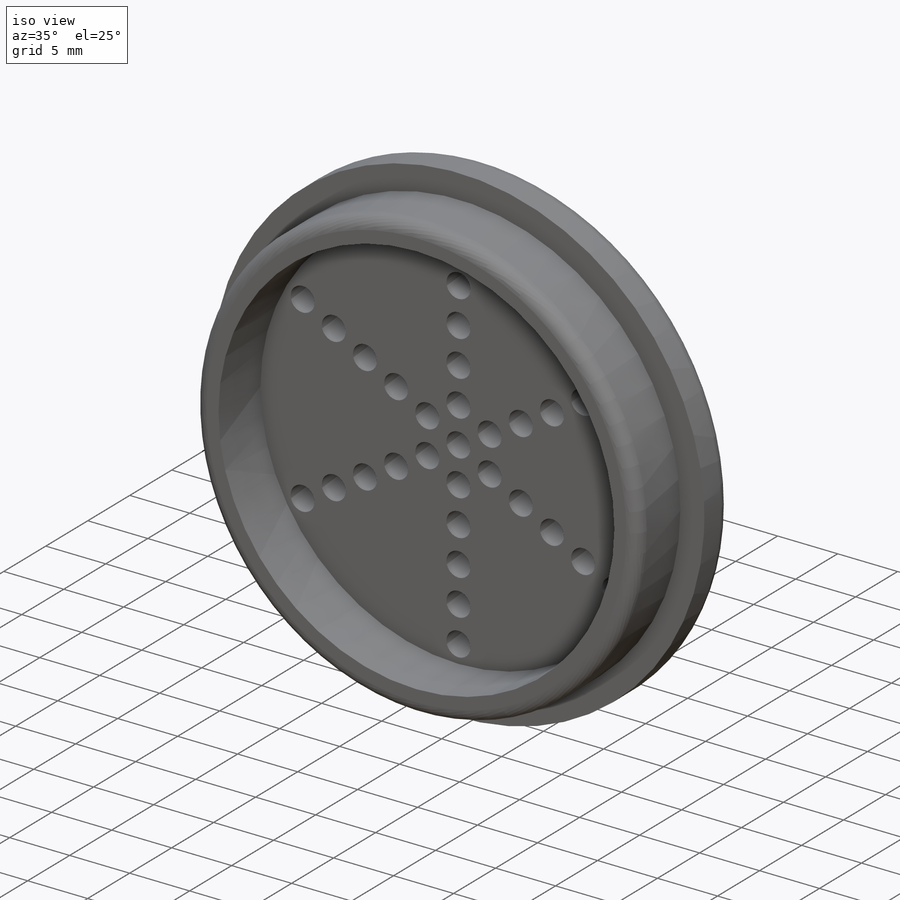
[diagram: iso view]
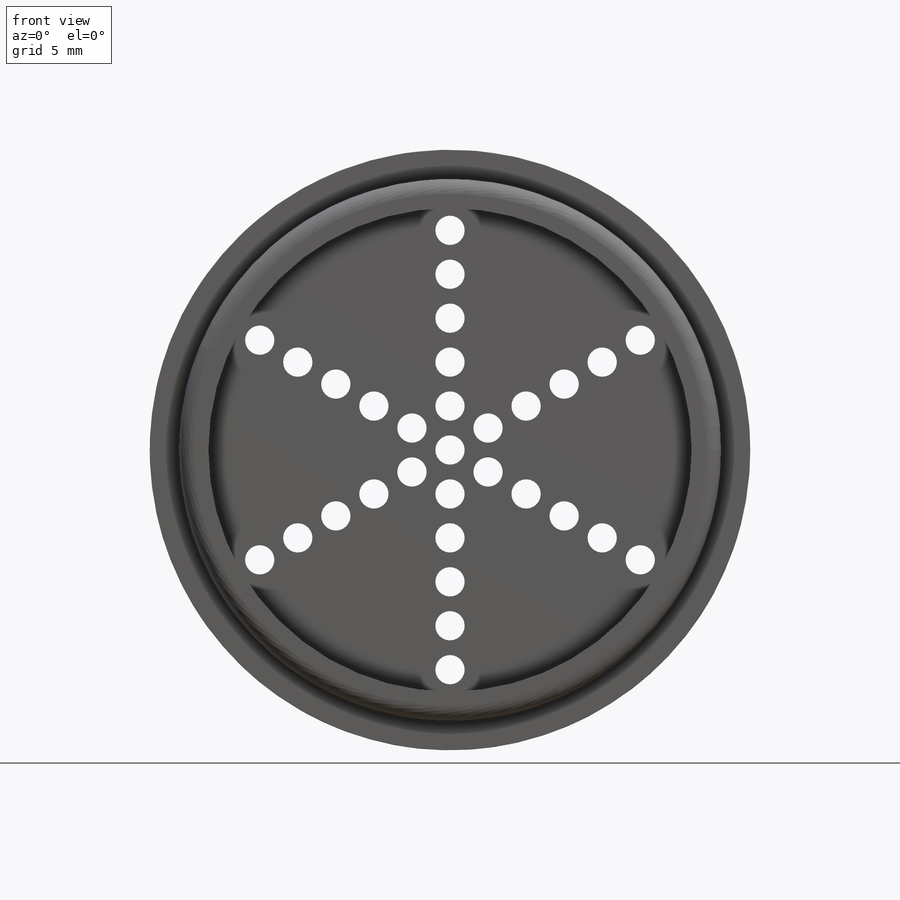
[diagram: front view]
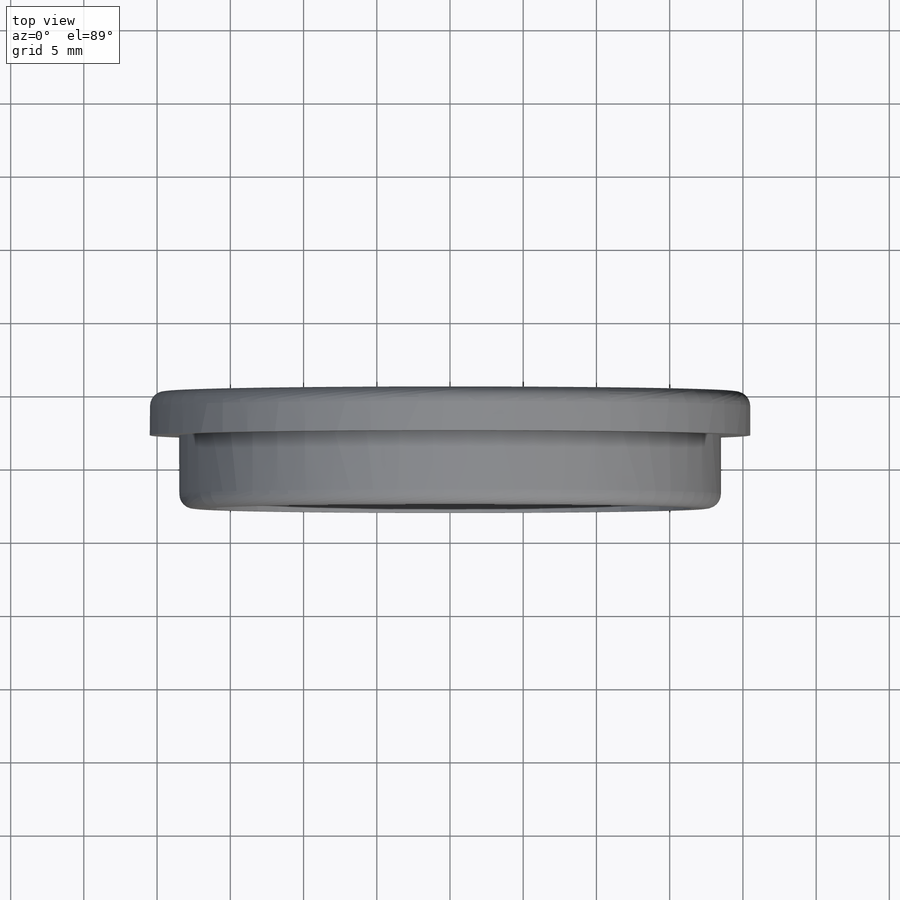
[diagram: top view]
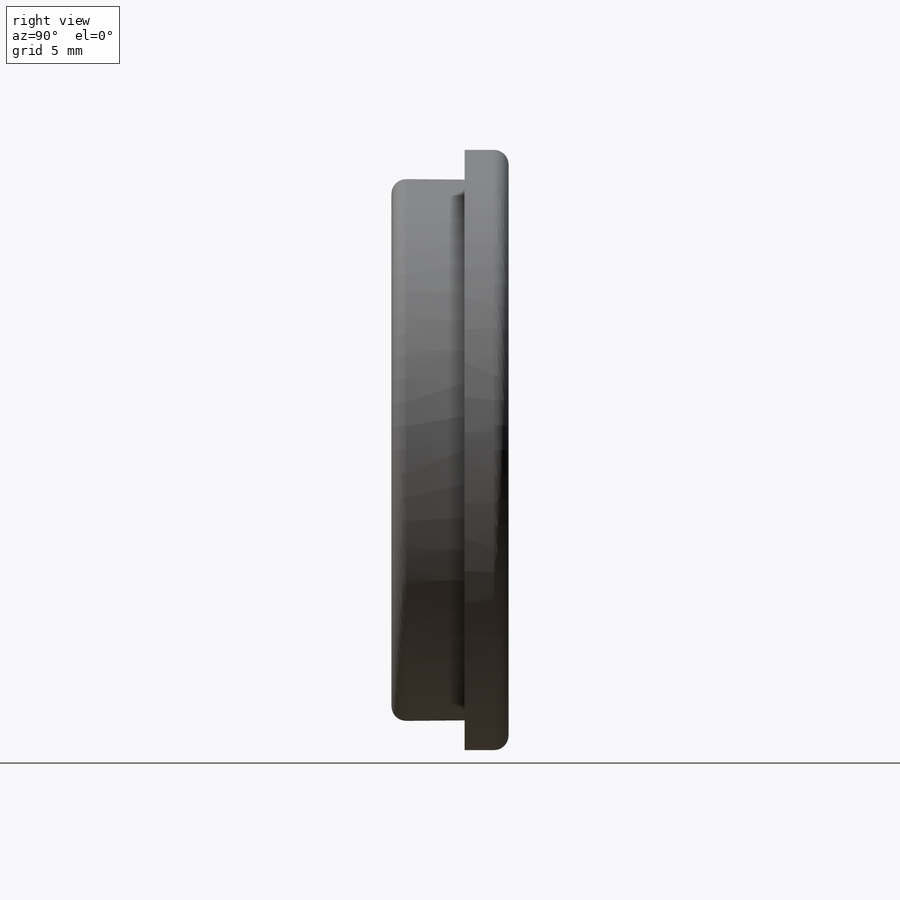
[diagram: right view]
SOLIDWORKS PART (.sldprt)
format: sldprt  version: not decoded by parser v0  size: 299,008 bytes
history: native  units: mm
features: sketch x6, extrude x2, cut_extrude x2, fillet x2, material x1, hole x1, pattern_circular x1 (+12 scaffold rows collapsed)
feature tree (27):
  scaffold x12  (default folders/planes/origin — collapsed)
  material  "Material <not specified>"
  sketch  "Sketch2"  dims[D1=41.0mm]
  extrude  "Boss-Extrude1"  Depth=3mm
  sketch  "Sketch3"  dims[D1=37.0mm]
  extrude  "Boss-Extrude2"  Depth=5mm
  sketch  "Sketch4"  dims[D1=2.0mm]
  cut_extrude  "Cut-Extrude1"  Depth=5mm
  fillet  "Fillet1"  Radius=1mm
  fillet  "Fillet2"  Radius=1mm
  sketch  "Sketch9"  dims[D1=2.0mm]
  cut_extrude  "Cut-Extrude2"  [1 undecoded]
  hole  "Ø2.0mm Dowel Hole4"  Diameter=2mm Depth=100mm
  sketch  "Sketch13"  dims[D1=3.0mm D2=3.0mm D3=3.0mm D4=3.0mm D5=3.0mm]
  sketch  "Sketch12"  dims[hole-wizard template sketch: 47 standard entries collapsed; hole parameters kept: c15.Hole Depth=100.0mm c15.D3=~14.816244mm c15.Drill Angle=118.0deg]
  pattern_circular  "CirPattern1"  Count=6 Angle=60deg
decode coverage: 13 of 14 modeling features carry decoded parameters
note: ~ marks probable driven/reference dimensions
note: 1 parameter value undecoded
note: suppression state not decoded; provenance and decode notes live in map.json
